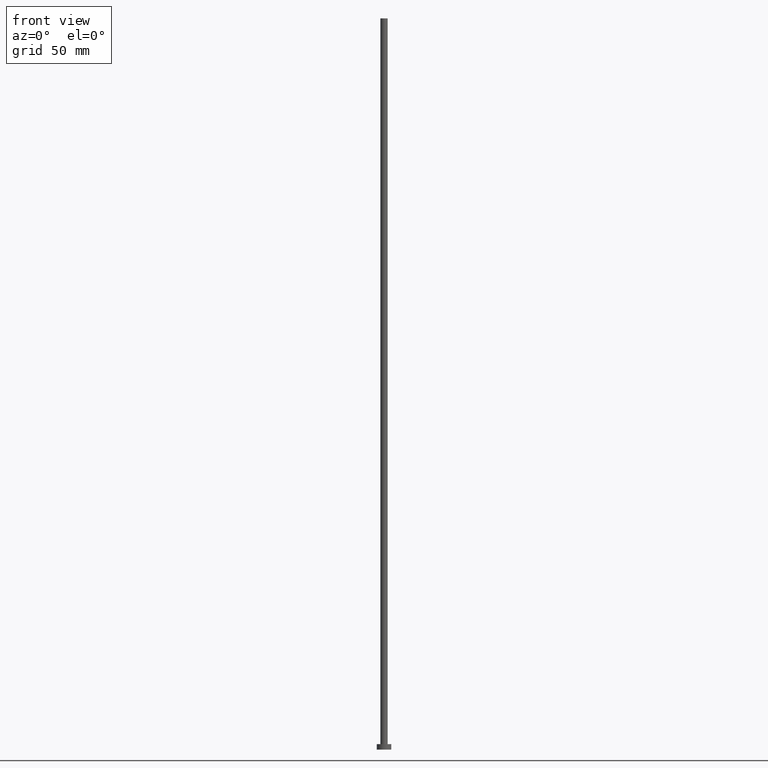
[diagram: clean part render]
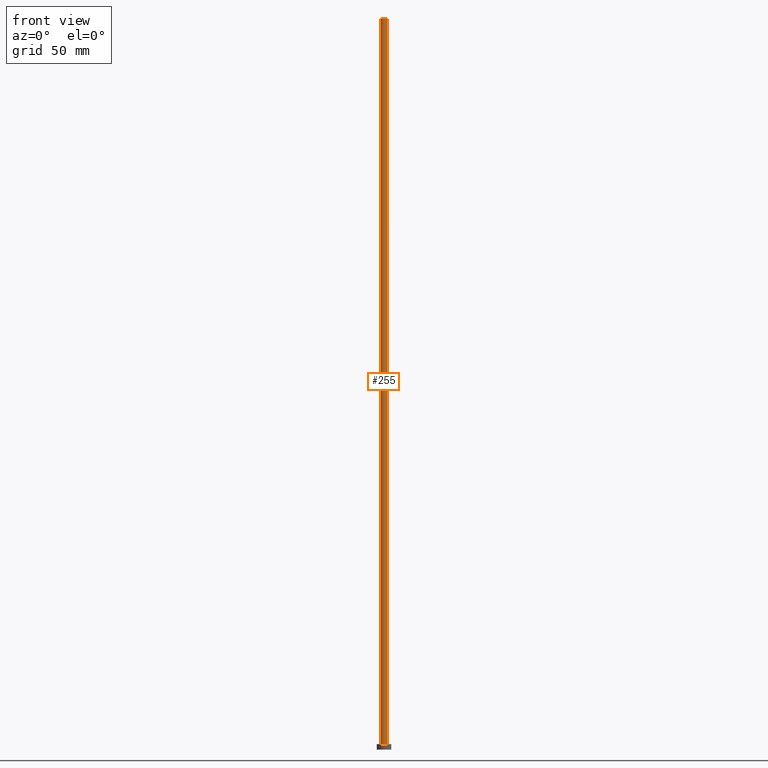
[diagram: same view with one face highlighted and labeled with its STEP entity id]
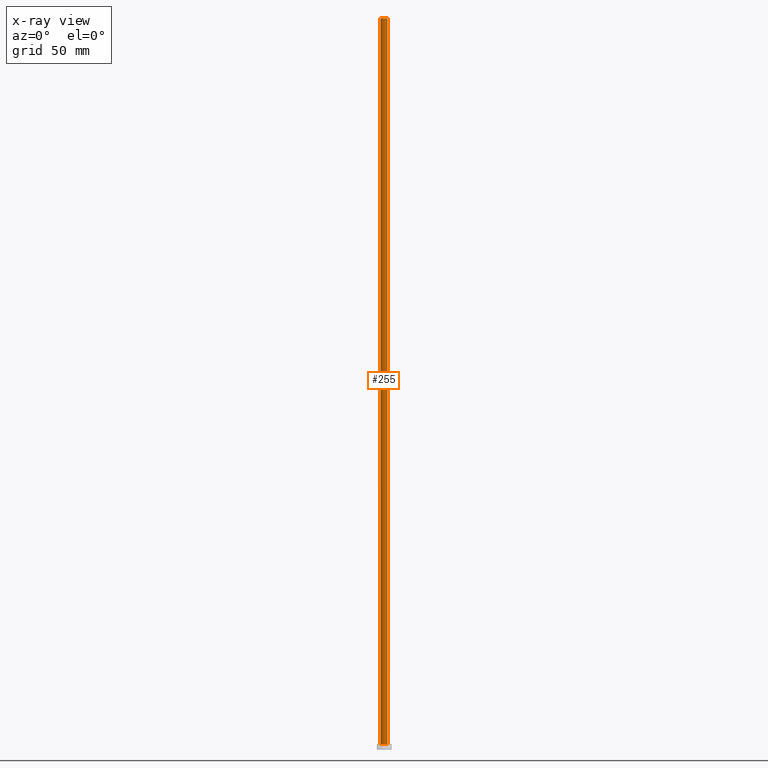
[diagram: x-ray of the same camera — body ghosted, the highlighted face saturated]
A machine part, front view. The second image highlights one B-rep face of the part: STEP entity #255.
The next image is the same camera in x-ray: the body ghosted, the highlighted face saturated — about 0% of this face is hidden behind the body in this view.
In plain terms, the highlighted cylindrical surface (edge-blend (fillet) strip) has radius 2 mm, axis along (-0, -0, -1).
Its self-contained STEP definition (entity closure, byte-faithful):
#25 = EDGE_CURVE ( 'NONE', #169, #147, #231, .T. ) ;
#26 = CARTESIAN_POINT ( 'NONE',  ( 2.000000000000000000, 2.449293598294706414E-16, 3.000000000000000000 ) ) ;
#33 = EDGE_CURVE ( 'NONE', #240, #169, #104, .T. ) ;
#35 = CARTESIAN_POINT ( 'NONE',  ( -2.000000000000000000, 0.000000000000000000, 400.0000000000000000 ) ) ;
#38 = CARTESIAN_POINT ( 'NONE',  ( 2.000000000000000000, 2.449293598294706414E-16, 400.0000000000000000 ) ) ;
#39 = CARTESIAN_POINT ( 'NONE',  ( 0.000000000000000000, 0.000000000000000000, 400.0000000000000000 ) ) ;
#52 = DIRECTION ( 'NONE',  ( -0.000000000000000000, -0.000000000000000000, -1.000000000000000000 ) ) ;
#53 = ORIENTED_EDGE ( 'NONE', *, *, #25, .F. ) ;
#54 = FACE_OUTER_BOUND ( 'NONE', #227, .T. ) ;
#56 = CARTESIAN_POINT ( 'NONE',  ( 2.000000000000000000, 2.449293598294706414E-16, 400.0000000000000000 ) ) ;
#61 = CARTESIAN_POINT ( 'NONE',  ( 0.000000000000000000, 0.000000000000000000, 3.000000000000000000 ) ) ;
#67 = DIRECTION ( 'NONE',  ( -0.000000000000000000, -0.000000000000000000, -1.000000000000000000 ) ) ;
#86 = ORIENTED_EDGE ( 'NONE', *, *, #148, .T. ) ;
#88 = DIRECTION ( 'NONE',  ( -0.000000000000000000, -0.000000000000000000, -1.000000000000000000 ) ) ;
#95 = DIRECTION ( 'NONE',  ( 0.000000000000000000, 0.000000000000000000, 1.000000000000000000 ) ) ;
#97 = LINE ( 'NONE', #165, #197 ) ;
#102 = EDGE_CURVE ( 'NONE', #203, #147, #210, .T. ) ;
#104 = CIRCLE ( 'NONE', #222, 2.000000000000000000 ) ;
#105 = DIRECTION ( 'NONE',  ( -1.000000000000000000, 0.000000000000000000, 0.000000000000000000 ) ) ;
#143 = ORIENTED_EDGE ( 'NONE', *, *, #33, .F. ) ;
#146 = ORIENTED_EDGE ( 'NONE', *, *, #102, .T. ) ;
#147 = VERTEX_POINT ( 'NONE', #26 ) ;
#148 = EDGE_CURVE ( 'NONE', #240, #203, #97, .T. ) ;
#150 = CYLINDRICAL_SURFACE ( 'NONE', #219, 2.000000000000000000 ) ;
#161 = DIRECTION ( 'NONE',  ( 1.000000000000000000, 0.000000000000000000, 0.000000000000000000 ) ) ;
#165 = CARTESIAN_POINT ( 'NONE',  ( -2.000000000000000000, 0.000000000000000000, 400.0000000000000000 ) ) ;
#169 = VERTEX_POINT ( 'NONE', #38 ) ;
#174 = VECTOR ( 'NONE', #88, 1000.000000000000000 ) ;
#192 = DIRECTION ( 'NONE',  ( 1.000000000000000000, 0.000000000000000000, 0.000000000000000000 ) ) ;
#197 = VECTOR ( 'NONE', #67, 1000.000000000000000 ) ;
#203 = VERTEX_POINT ( 'NONE', #205 ) ;
#205 = CARTESIAN_POINT ( 'NONE',  ( -2.000000000000000000, 0.000000000000000000, 3.000000000000000000 ) ) ;
#208 = DIRECTION ( 'NONE',  ( 0.000000000000000000, 0.000000000000000000, 1.000000000000000000 ) ) ;
#210 = CIRCLE ( 'NONE', #245, 2.000000000000000000 ) ;
#219 = AXIS2_PLACEMENT_3D ( 'NONE', #230, #52, #105 ) ;
#222 = AXIS2_PLACEMENT_3D ( 'NONE', #39, #208, #192 ) ;
#227 = EDGE_LOOP ( 'NONE', ( #53, #143, #86, #146 ) ) ;
#230 = CARTESIAN_POINT ( 'NONE',  ( 0.000000000000000000, 0.000000000000000000, 400.0000000000000000 ) ) ;
#231 = LINE ( 'NONE', #56, #174 ) ;
#240 = VERTEX_POINT ( 'NONE', #35 ) ;
#245 = AXIS2_PLACEMENT_3D ( 'NONE', #61, #95, #161 ) ;
#255 = ADVANCED_FACE ( 'NONE', ( #54 ), #150, .T. ) ;